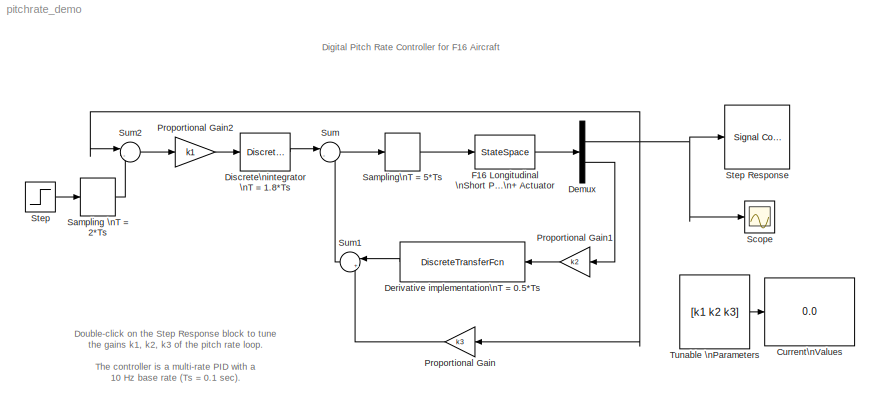
MODEL pitchrate_demo
KIND model
CONFIG PreLoadFcn = load pitchrate_demo
BLOCK [Display] Current\nValues
  Decimation = 1
  Ports = [1]
BLOCK [Demux] Demux
  Outputs = 2
  Ports = [1, 2]
BLOCK [DiscreteTransferFcn] Derivative implementation\nT = 0.5*Ts
  Denominator = [1 -(1-10*Ts/2)/(1+10*Ts/2)]
  Numerator = [1 1]*(10*Ts)/(10*Ts+2)
  SampleTime = 0.4*Ts
BLOCK [DiscreteTransferFcn] Discrete\nintegrator \nT = 1.8*Ts
  Denominator = [1 -1]
  Numerator = [1 1]*Ts/2
  SampleTime = 1.8*Ts
BLOCK [StateSpace] F16 Longitudinal \nShort Period Dynamics\n+ Actuator
  A = Ap
  B = Bp
  C = Cp
  D = Dp
BLOCK [Gain] Proportional Gain
  Gain = k3
BLOCK [Gain] Proportional Gain1
  Gain = k2
BLOCK [Gain] Proportional Gain2
  Gain = k1
BLOCK [ZeroOrderHold] Sampling \nT = 2*Ts
  SampleTime = 2*Ts
BLOCK [ZeroOrderHold] Sampling\nT = 5*Ts
  SampleTime = 5*Ts
BLOCK [Scope] Scope
  DataFormat = StructureWithTime
  NumInputPorts = 1
  Ports = [1]
BLOCK [Step] Step
  SampleTime = 0
  Time = 0
BLOCK [Reference] Step Response  REF=srolib/Signal Constraint  (lib defined in mdl_d992e5ea460a)
  DialogPosition = [0.04765625 0.298828125 0.378125 0.265625]
  LogID = SRO_DataLog_1
  Ports = [1]
  SaveAs = pitchrate_optim
  SaveIn = workspace
  ShowPortLabels = on
  SourceBlock = srolib/Signal Constraint
  SourceType = Signal Constraint
  Ylim = [-0.5 1.5]
BLOCK [Sum] Sum
  IconShape = round
  InputSameDT = off
  Inputs = |--
  OutDataTypeMode = Inherit via internal rule
  Ports = [2, 1]
BLOCK [Sum] Sum1
  IconShape = round
  InputSameDT = off
  Inputs = |++
  OutDataTypeMode = Inherit via internal rule
  Ports = [2, 1]
BLOCK [Sum] Sum2
  IconShape = round
  InputSameDT = off
  Inputs = |-+
  OutDataTypeMode = Inherit via internal rule
  Ports = [2, 1]
BLOCK [Constant] Tunable \nParameters
  Value = [k1 k2 k3]
ANNOTATION (root): Digital Pitch Rate Controller for F16 Aircraft
ANNOTATION (root): Double-click on the Step Response block to tune \nthe gains k1, k2, k3 of the pitch rate loop.\n\nThe controller is a multi-rate PID with a \n10 Hz base rate (Ts = 0.1 sec). \n\nRef: Aircraft Simulation and Control, Stevens & Lewis, pp 553.
NET Demux:1 -> Proportional Gain:1, Scope:1, Step Response:1, Sum2:1
LINE Demux:2 -> Proportional Gain1:1
LINE Derivative implementation\nT = 0.5*Ts:1 -> Sum1:1
LINE Discrete\nintegrator \nT = 1.8*Ts:1 -> Sum:1
LINE F16 Longitudinal \nShort Period Dynamics\n+ Actuator:1 -> Demux:1
LINE Proportional Gain1:1 -> Derivative implementation\nT = 0.5*Ts:1
LINE Proportional Gain2:1 -> Discrete\nintegrator \nT = 1.8*Ts:1
LINE Proportional Gain:1 -> Sum1:2
LINE Sampling \nT = 2*Ts:1 -> Sum2:2
LINE Sampling\nT = 5*Ts:1 -> F16 Longitudinal \nShort Period Dynamics\n+ Actuator:1
LINE Step:1 -> Sampling \nT = 2*Ts:1
LINE Sum1:1 -> Sum:2
LINE Sum2:1 -> Proportional Gain2:1
LINE Sum:1 -> Sampling\nT = 5*Ts:1
LINE Tunable \nParameters:1 -> Current\nValues:1
note: NET lines group one-source signal fan-out (src -> all destinations, sorted); 1:1 wires keep LINE
